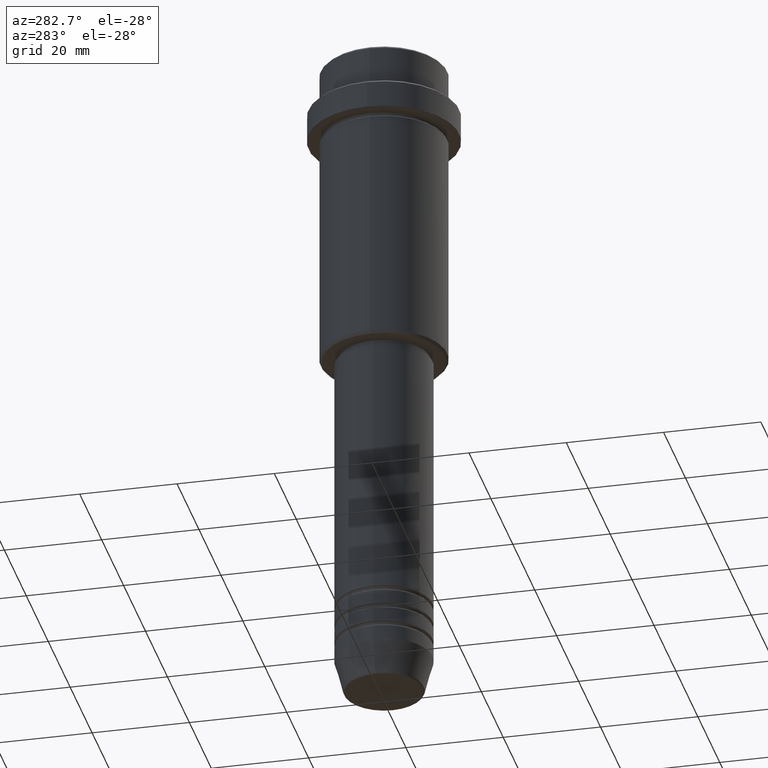
[diagram: clean part render]
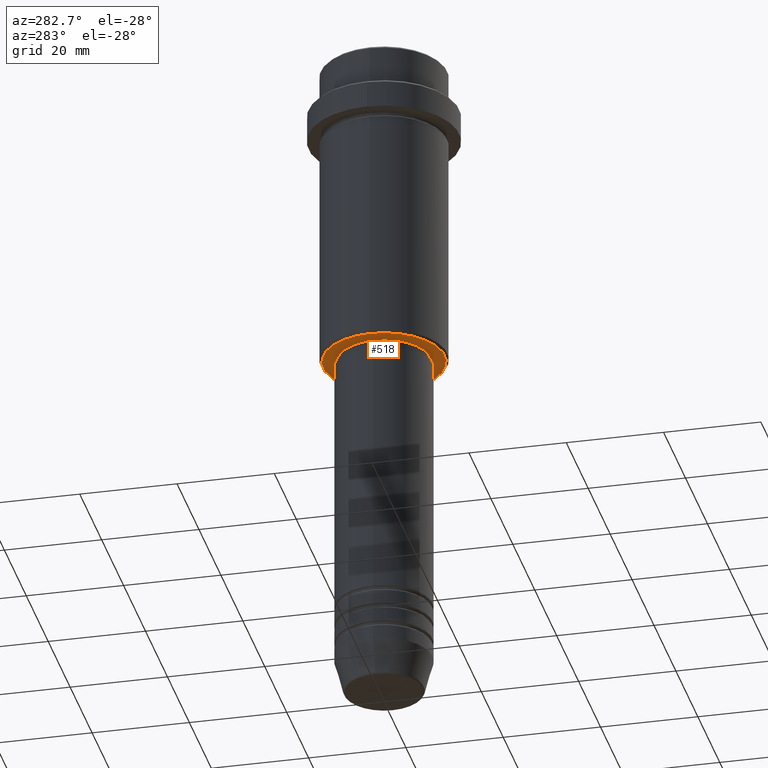
[diagram: same view with one face highlighted and labeled with its STEP entity id]
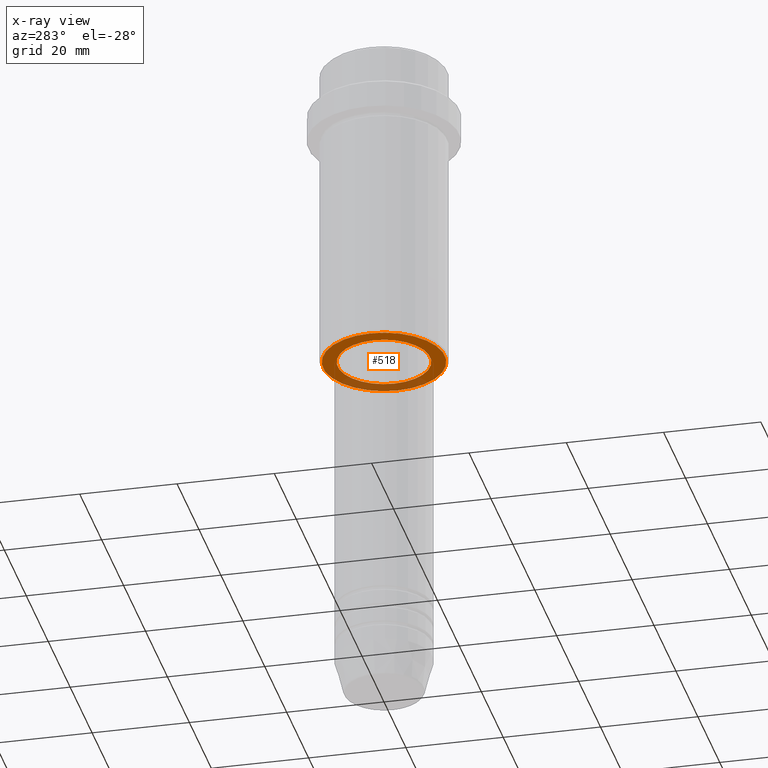
[diagram: x-ray of the same camera — body ghosted, the highlighted face saturated]
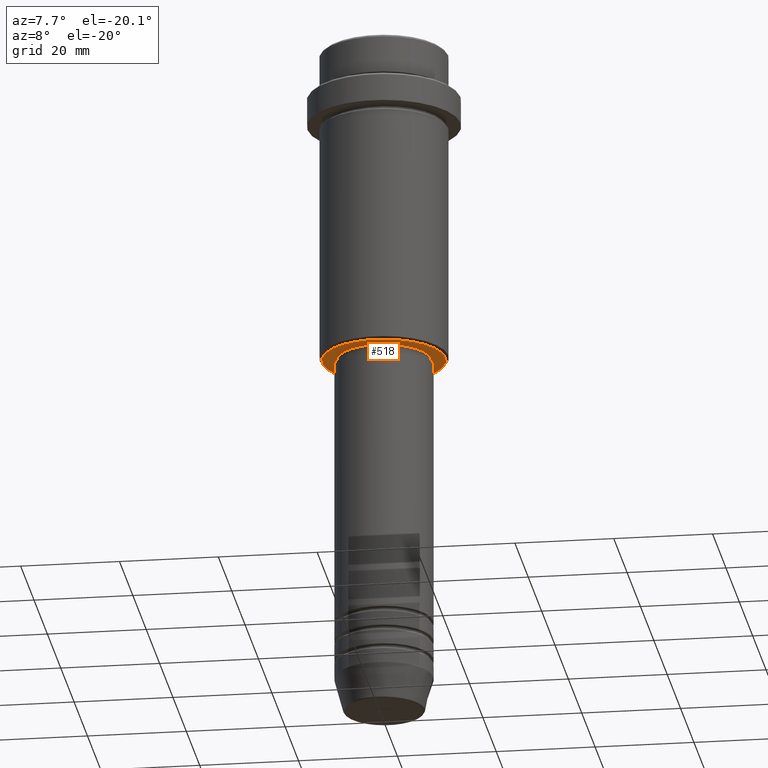
[diagram: same view with one face highlighted and labeled with its STEP entity id]
A machine part, auxiliary view. The second image highlights one B-rep face of the part: STEP entity #518.
The next image is the same camera in x-ray: the body ghosted, the highlighted face saturated — about 26% of this face is hidden behind the body in this view.
A second angle (auxiliary view) of the same face is appended — the face is thin or edge-on in the first view.
In plain terms, the highlighted planar face has unit normal (0, 0, -1).
Its self-contained STEP definition (entity closure, byte-faithful):
#20 = DIRECTION ( 'NONE',  ( 1.000000000000000000, 0.000000000000000000, 0.000000000000000000 ) ) ;
#34 = CARTESIAN_POINT ( 'NONE',  ( -12.49999999999999645, 1.561424668912875111E-15, -65.00000000000001421 ) ) ;
#71 = EDGE_CURVE ( 'NONE', #507, #318, #1211, .T. ) ;
#84 = DIRECTION ( 'NONE',  ( 0.000000000000000000, 0.000000000000000000, -1.000000000000000000 ) ) ;
#163 = FACE_BOUND ( 'NONE', #344, .T. ) ;
#214 = VERTEX_POINT ( 'NONE', #294 ) ;
#279 = CARTESIAN_POINT ( 'NONE',  ( -9.499999999999996447, 1.163414459189985091E-15, -65.00000000000001421 ) ) ;
#294 = CARTESIAN_POINT ( 'NONE',  ( 9.499999999999996447, 0.000000000000000000, -65.00000000000001421 ) ) ;
#310 = DIRECTION ( 'NONE',  ( -1.000000000000000000, 0.000000000000000000, 0.000000000000000000 ) ) ;
#318 = VERTEX_POINT ( 'NONE', #34 ) ;
#344 = EDGE_LOOP ( 'NONE', ( #641, #781 ) ) ;
#390 = CARTESIAN_POINT ( 'NONE',  ( 0.000000000000000000, 0.000000000000000000, -65.00000000000001421 ) ) ;
#407 = EDGE_CURVE ( 'NONE', #528, #214, #488, .T. ) ;
#412 = EDGE_CURVE ( 'NONE', #214, #528, #1360, .T. ) ;
#443 = DIRECTION ( 'NONE',  ( 1.000000000000000000, 0.000000000000000000, 0.000000000000000000 ) ) ;
#475 = DIRECTION ( 'NONE',  ( -0.000000000000000000, -0.000000000000000000, 1.000000000000000000 ) ) ;
#486 = EDGE_CURVE ( 'NONE', #318, #507, #697, .T. ) ;
#488 = CIRCLE ( 'NONE', #1212, 9.499999999999996447 ) ;
#501 = CARTESIAN_POINT ( 'NONE',  ( 0.000000000000000000, 13.00000000000000000, -65.00000000000001421 ) ) ;
#505 = DIRECTION ( 'NONE',  ( -1.000000000000000000, 0.000000000000000000, 0.000000000000000000 ) ) ;
#507 = VERTEX_POINT ( 'NONE', #727 ) ;
#510 = AXIS2_PLACEMENT_3D ( 'NONE', #501, #1364, #944 ) ;
#518 = ADVANCED_FACE ( 'NONE', ( #1257, #163 ), #1370, .T. ) ;
#526 = DIRECTION ( 'NONE',  ( 0.000000000000000000, 0.000000000000000000, -1.000000000000000000 ) ) ;
#528 = VERTEX_POINT ( 'NONE', #279 ) ;
#601 = AXIS2_PLACEMENT_3D ( 'NONE', #390, #526, #310 ) ;
#641 = ORIENTED_EDGE ( 'NONE', *, *, #412, .T. ) ;
#654 = ORIENTED_EDGE ( 'NONE', *, *, #486, .T. ) ;
#697 = CIRCLE ( 'NONE', #1150, 12.49999999999999645 ) ;
#727 = CARTESIAN_POINT ( 'NONE',  ( 12.49999999999999645, 0.000000000000000000, -65.00000000000001421 ) ) ;
#781 = ORIENTED_EDGE ( 'NONE', *, *, #407, .T. ) ;
#867 = EDGE_LOOP ( 'NONE', ( #1377, #654 ) ) ;
#921 = AXIS2_PLACEMENT_3D ( 'NONE', #1122, #475, #20 ) ;
#944 = DIRECTION ( 'NONE',  ( -1.000000000000000000, 0.000000000000000000, -0.000000000000000000 ) ) ;
#1038 = CARTESIAN_POINT ( 'NONE',  ( 0.000000000000000000, 0.000000000000000000, -65.00000000000001421 ) ) ;
#1069 = CARTESIAN_POINT ( 'NONE',  ( 0.000000000000000000, 0.000000000000000000, -65.00000000000001421 ) ) ;
#1122 = CARTESIAN_POINT ( 'NONE',  ( 0.000000000000000000, 0.000000000000000000, -65.00000000000001421 ) ) ;
#1150 = AXIS2_PLACEMENT_3D ( 'NONE', #1038, #84, #505 ) ;
#1211 = CIRCLE ( 'NONE', #601, 12.49999999999999645 ) ;
#1212 = AXIS2_PLACEMENT_3D ( 'NONE', #1069, #1231, #443 ) ;
#1231 = DIRECTION ( 'NONE',  ( -0.000000000000000000, -0.000000000000000000, 1.000000000000000000 ) ) ;
#1257 = FACE_OUTER_BOUND ( 'NONE', #867, .T. ) ;
#1360 = CIRCLE ( 'NONE', #921, 9.499999999999996447 ) ;
#1364 = DIRECTION ( 'NONE',  ( 0.000000000000000000, 0.000000000000000000, -1.000000000000000000 ) ) ;
#1370 = PLANE ( 'NONE',  #510 ) ;
#1377 = ORIENTED_EDGE ( 'NONE', *, *, #71, .T. ) ;